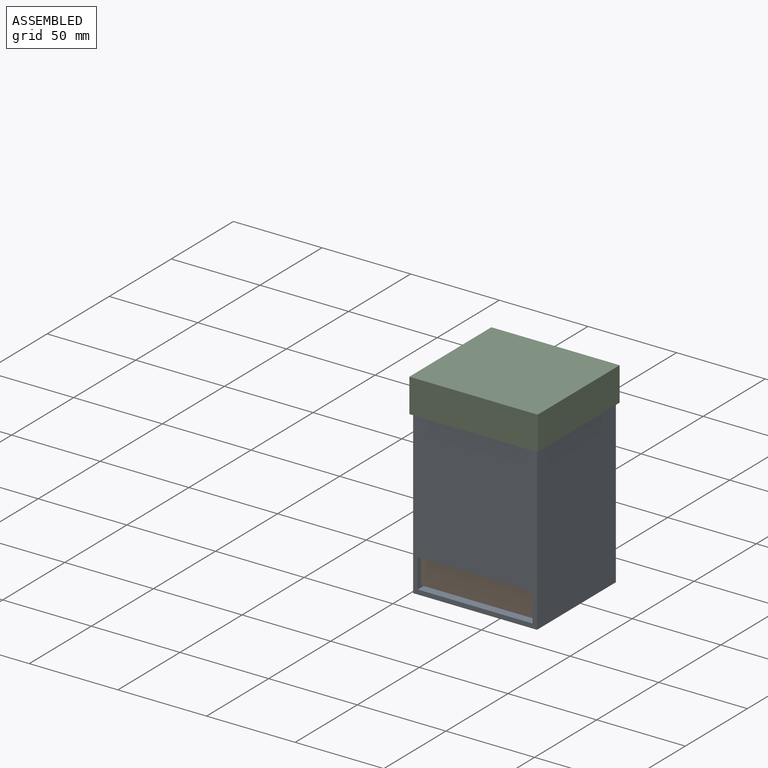
[diagram: assembled view]
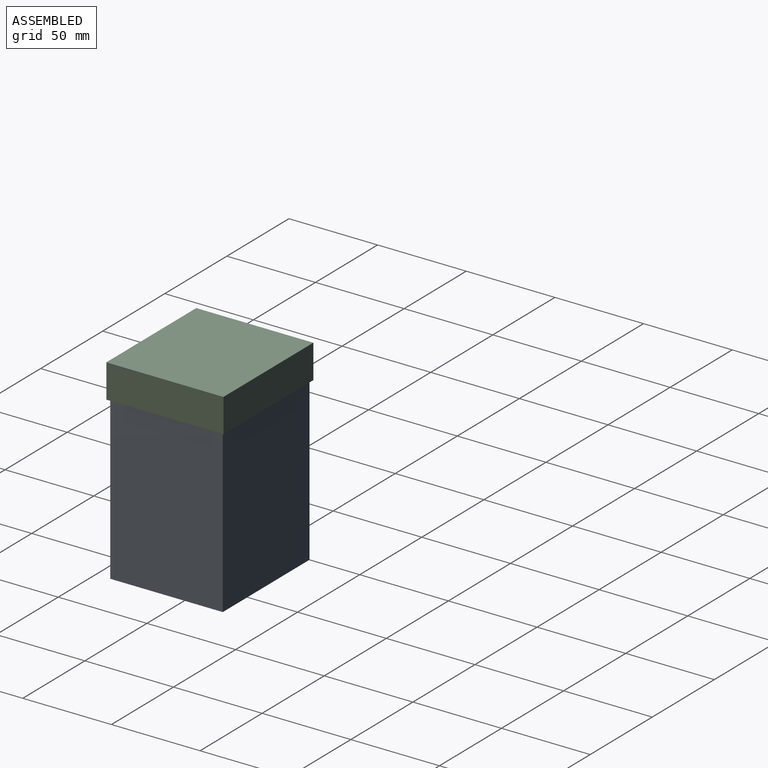
[diagram: assembled view, second angle]
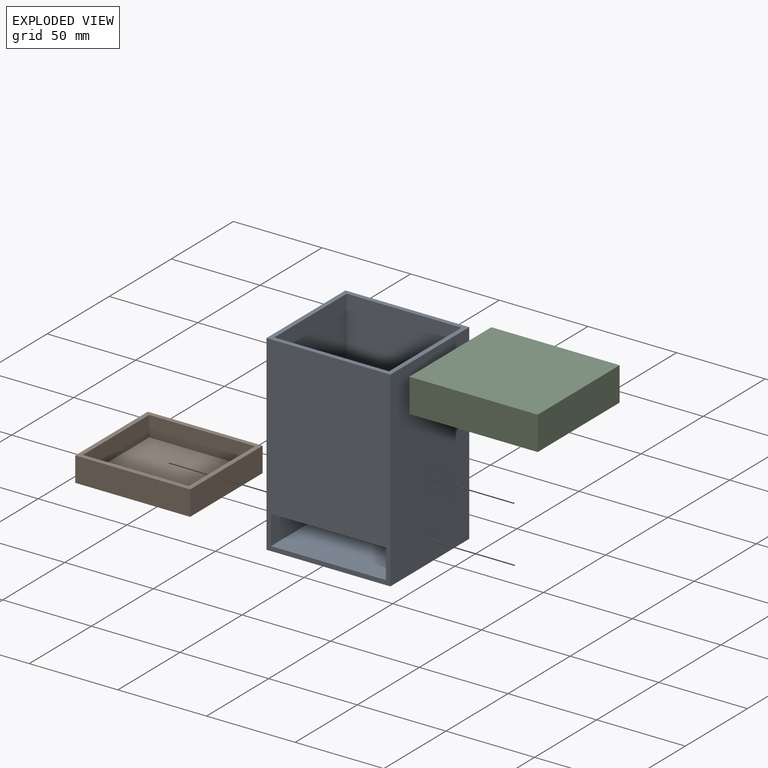
[diagram: exploded view]
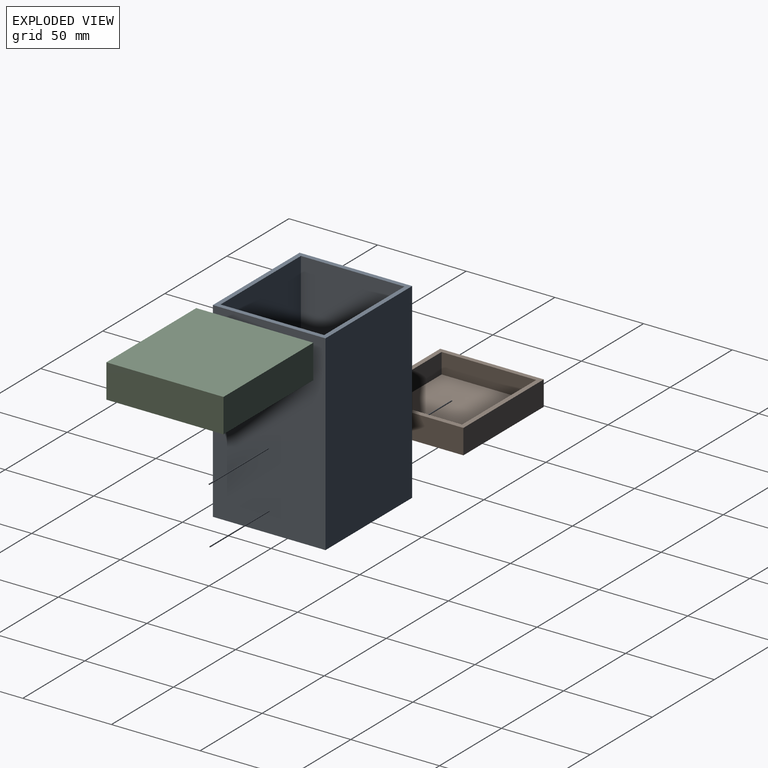
[diagram: exploded view, second angle]
ASSEMBLY  parts=3 mates=2
PART A: 16 faces, bbox 69.9x63.5x108 mm
  f0: plane 107.95x69.85mm, normal (0,-1,0), area 6471mm2, adj f1,f2,f3,f10,f11,f12,f13,f15
  f1: plane 69.85x63.5mm, normal (0,0,1), area 651.6mm2, adj f0,f2,f3,f4,f5,f7,f8,f9
  f2: plane 107.95x63.5mm, normal (-1,0,0), area 6854.8mm2, adj f0,f1,f4,f10
  f3: plane 107.95x63.5mm, normal (1,0,0), area 6854.8mm2, adj f0,f1,f4,f10
  f4: plane 107.95x69.85mm, normal (0,1,0), area 7540.3mm2, adj f1,f2,f3,f10
  f5: plane 86.36x58.42mm, normal (1,0,0), area 5045.2mm2, adj f1,f6,f8,f9
  f6: plane 64.77x58.42mm, normal (0,0,1), area 3783.9mm2, adj f5,f7,f8,f9
  f7: plane 86.36x58.42mm, normal (-1,0,0), area 5045.2mm2, adj f1,f6,f8,f9
  f8: plane 86.36x64.77mm, normal (0,1,0), area 5593.5mm2, adj f1,f5,f6,f7
  f9: plane 86.36x64.77mm, normal (0,-1,0), area 5593.5mm2, adj f1,f5,f6,f7
  f10: plane 69.85x63.5mm, normal (0,0,-1), area 4435.5mm2, adj f0,f2,f3,f4
  f11: plane 64.77x60.96mm, normal (0,0,-1), area 3948.4mm2, adj f0,f12,f13,f14
  f12: plane 60.96x16.51mm, normal (1,0,0), area 1006.4mm2, adj f0,f11,f14,f15
  f13: plane 60.96x16.51mm, normal (-1,0,0), area 1006.4mm2, adj f0,f11,f14,f15
  f14: plane 64.77x16.51mm, normal (0,-1,0), area 1069.4mm2, adj f11,f12,f13,f15
  f15: plane 64.77x60.96mm, normal (0,0,1), area 3948.4mm2, adj f0,f12,f13,f14
PART B: 11 faces, bbox 64.8x58.4x14 mm
  f0: plane 64.77x58.42mm, normal (0,0,1), area 600mm2, adj f2,f3,f4,f5,f7,f8,f9,f10
  f1: plane 64.77x58.42mm, normal (0,0,-1), area 3783.9mm2, adj f2,f3,f4,f5
  f2: plane 58.42x13.97mm, normal (1,0,0), area 816.1mm2, adj f0,f1,f4,f5
  f3: plane 58.42x13.97mm, normal (-1,0,0), area 816.1mm2, adj f0,f1,f4,f5
  f4: plane 64.77x13.97mm, normal (0,-1,0), area 904.8mm2, adj f0,f1,f2,f3
  f5: plane 64.77x13.97mm, normal (0,1,0), area 904.8mm2, adj f0,f1,f2,f3
  f6: plane 59.69x53.34mm, normal (0,0,1), area 3183.9mm2, adj f7,f8,f9,f10
  f7: plane 53.34x11.43mm, normal (-1,0,0), area 609.7mm2, adj f0,f6,f9,f10
  f8: plane 53.34x11.43mm, normal (1,0,0), area 609.7mm2, adj f0,f6,f9,f10
  f9: plane 59.69x11.43mm, normal (0,1,0), area 682.3mm2, adj f0,f6,f7,f8
  f10: plane 59.69x11.43mm, normal (0,-1,0), area 682.3mm2, adj f0,f6,f7,f8
PART C: 11 faces, bbox 72.4x66x19.1 mm
  f0: plane 72.39x66.04mm, normal (0,0,1), area 677.4mm2, adj f1,f3,f4,f5,f6,f8,f9,f10
  f1: plane 66.04x19.05mm, normal (-1,0,0), area 1258.1mm2, adj f0,f2,f4,f5
  f2: plane 72.39x66.04mm, normal (0,0,-1), area 4780.6mm2, adj f1,f3,f4,f5
  f3: plane 66.04x19.05mm, normal (1,0,0), area 1258.1mm2, adj f0,f2,f4,f5
  f4: plane 72.39x19.05mm, normal (0,-1,0), area 1379mm2, adj f0,f1,f2,f3
  f5: plane 72.39x19.05mm, normal (0,1,0), area 1379mm2, adj f0,f1,f2,f3
  f6: plane 60.96x16.51mm, normal (1,0,0), area 1006.4mm2, adj f0,f7,f9,f10
  f7: plane 67.31x60.96mm, normal (0,0,1), area 4103.2mm2, adj f6,f8,f9,f10
  f8: plane 60.96x16.51mm, normal (-1,0,0), area 1006.4mm2, adj f0,f7,f9,f10
  f9: plane 67.31x16.51mm, normal (0,1,0), area 1111.3mm2, adj f0,f6,f7,f8
  f10: plane 67.31x16.51mm, normal (0,-1,0), area 1111.3mm2, adj f0,f6,f7,f8
PLACE A t=(-1.48,24.41,-58.46)mm
PLACE B t=(-26.03,21.87,-77.9)mm
PLACE C rot(axis=(0,1,0),180deg) t=(-21.89,25.68,-7.02)mm
MATE fastened C.f7 <-> A.f1  axis (0,0,1) through (-11.2,-7.34,-16.11)mm
MATE fastened B.f5 <-> A.f14  axis (0,-1,0) through (-11.2,21.87,-113.26)mm
